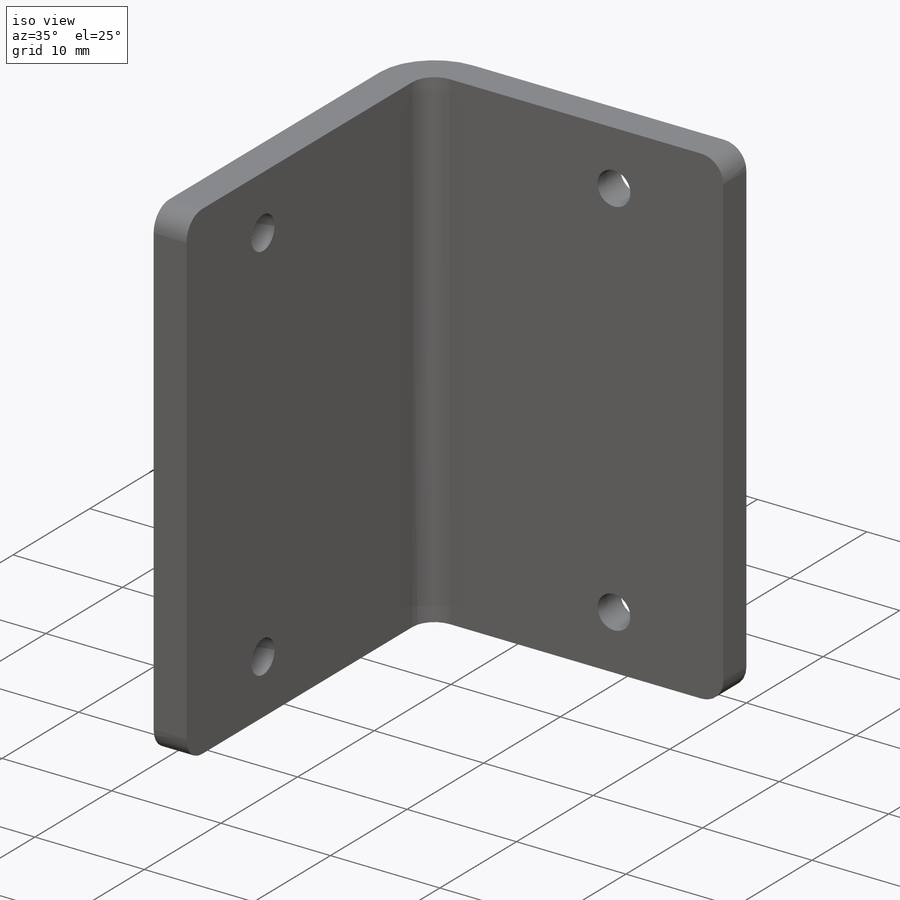
[diagram: iso view]
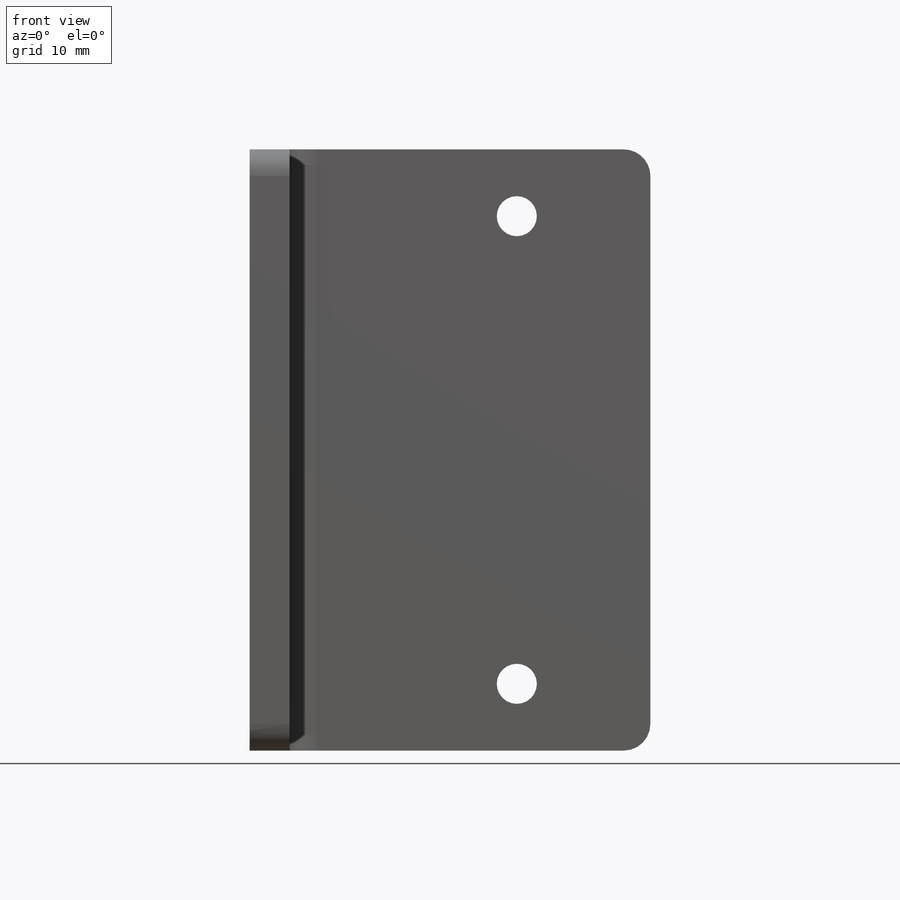
[diagram: front view]
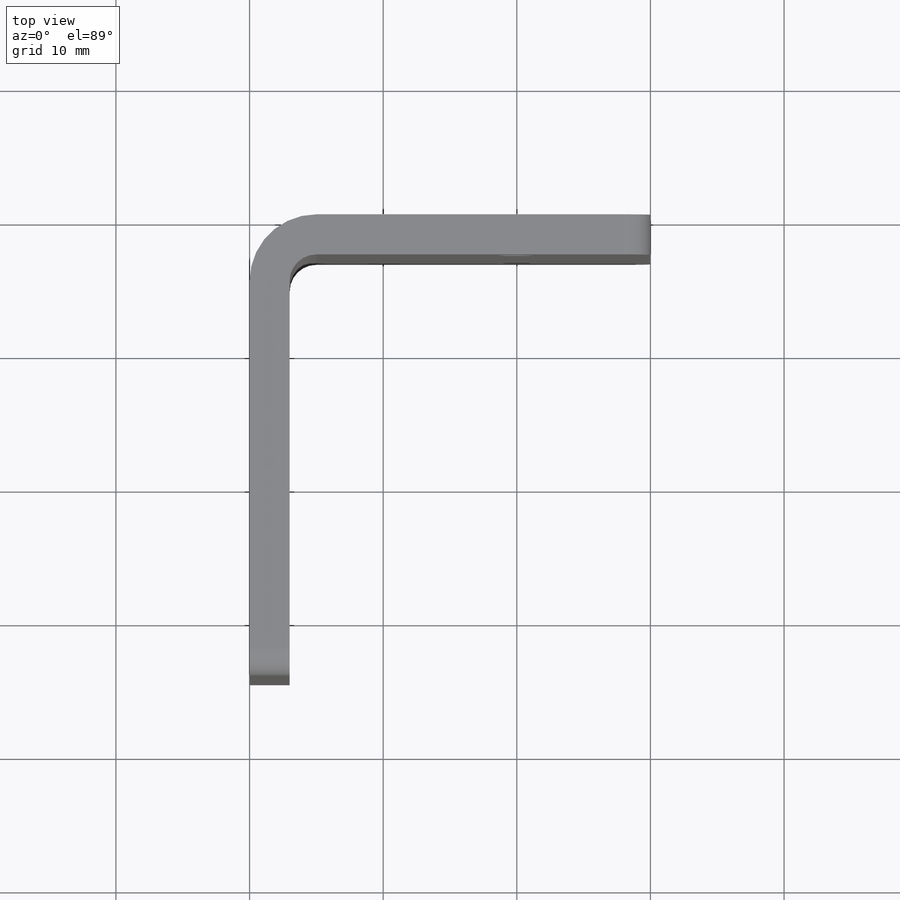
[diagram: top view]
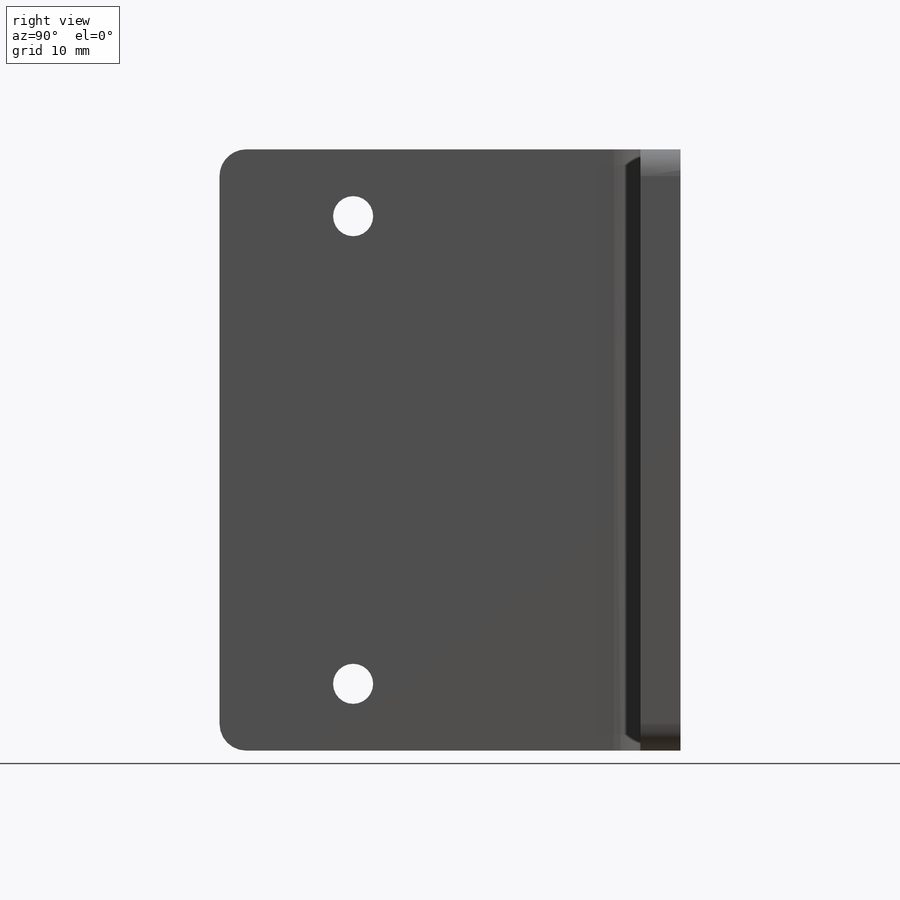
[diagram: right view]
SOLIDWORKS PART (.sldprt)
format: sldprt  version: not decoded by parser v0  size: 241,152 bytes
history: native  units: mm
features: fillet x7, plane x3, material x1, sketch x1, extrude x1, cut_extrude x1, sheet_metal_op x1 + 5 further entries (+8 scaffold rows collapsed)
feature tree (28):
  scaffold x8  (default folders/planes/origin — collapsed)
  material  "ｱｸﾘﾙ (中-上級の耐衝撃性)"
  "ｻｰﾌｪｽ ﾎﾞﾃﾞｨ"
  "ｿﾘｯﾄﾞ ﾎﾞﾃﾞｨ"
  plane  "正面"
  plane  "平面"
  plane  "右側面"
  sketch  "ｽｹｯﾁ2"
  extrude  "ﾎﾞｽ - 押し出し1"  Depth=3mm
  fillet  "ﾌｨﾚｯﾄ3"  Radius=2mm
  fillet  "ｽｹｯﾁ4"  Radius=2.366554mm
  cut_extrude  "ｶｯﾄ - 押し出し1"  Depth=10mm
  fillet  "ｽｹｯﾁ9"  Radius=30mm
  "ｽｹｯﾁ変換3"
  fillet  "ﾍﾞﾝﾄﾞ-ﾗｲﾝ1"  [1 undecoded]
  fillet  "境界ﾎﾞｯｸｽ1"  [1 undecoded]
  sheet_metal_op  "板金3"
  "ﾌﾗｯﾄ-ﾊﾟﾀｰﾝ3"
  fillet  "ﾍﾞﾝﾄﾞ-ﾗｲﾝ2"  [1 undecoded]
  fillet  "境界ﾎﾞｯｸｽ2"  [1 undecoded]
  "ｽｹｯﾁ変換1"
decode coverage: 5 of 11 modeling features carry decoded parameters; 5 rows unclassified (native names shown)
note: 4 parameter values undecoded
summary: no parameter record found for 4 features
note: suppression state not decoded; provenance and decode notes live in map.json
